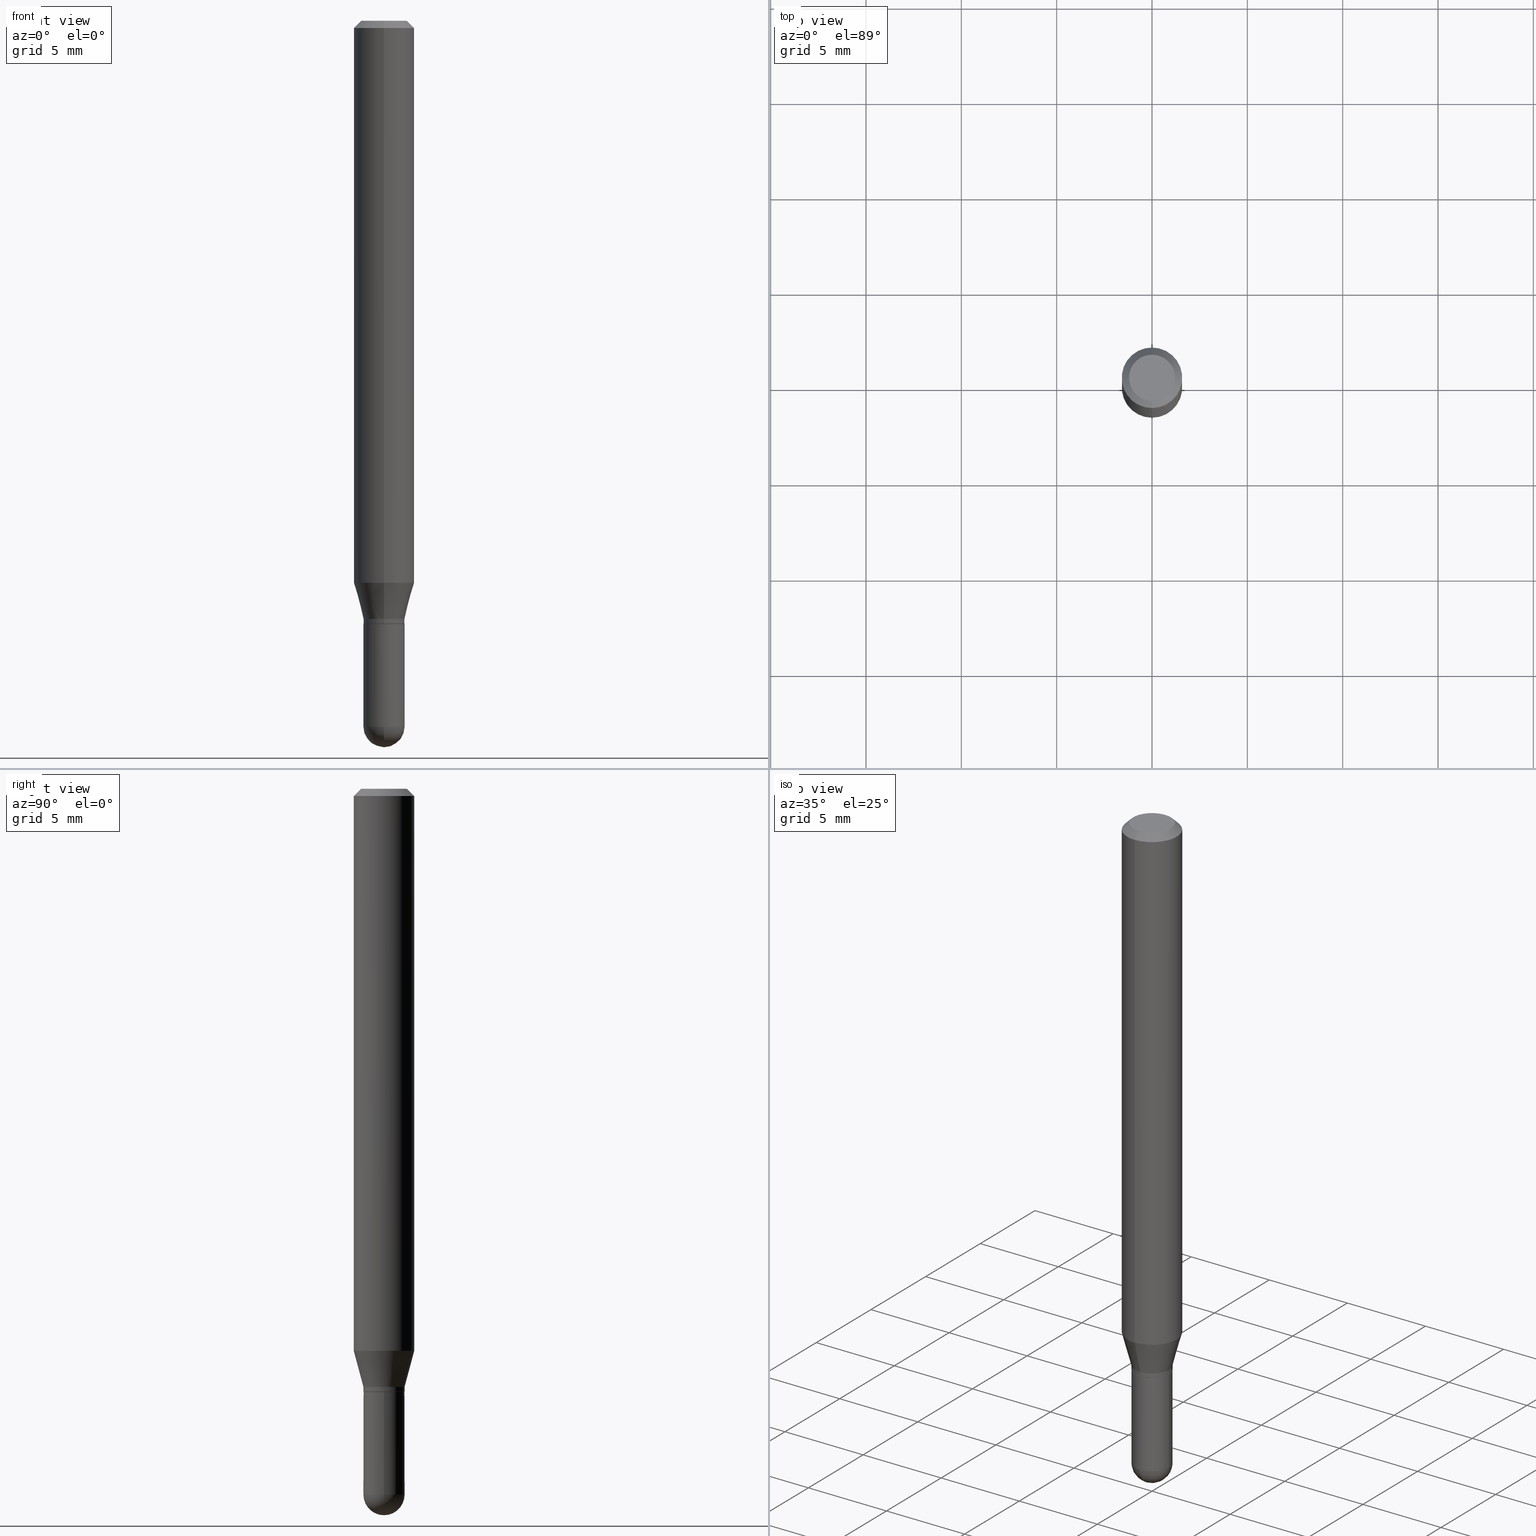
[diagram: canonical four-view strip — front | top / right | iso, engineering-drawing reading convention]
A machine part, canonical four-view strip (front | top / right | iso — engineering-drawing reading convention). The complete STEP part file that produces these views, byte-faithful:
ISO-10303-21;
HEADER;
FILE_DESCRIPTION (( 'STEP AP203' ),
    '1' );
FILE_NAME ('02597.STEP',
    '2024-03-07T20:40:13',
    ( '' ),
    ( '' ),
    'SwSTEP 2.0',
    'SolidWorks 2023',
    '' );
FILE_SCHEMA (( 'CONFIG_CONTROL_DESIGN' ));
ENDSEC;

DATA;
#1 = AXIS2_PLACEMENT_3D ( 'NONE', #200, #480, #125 ) ;
#2 = CARTESIAN_POINT ( 'NONE',  ( 3.044608663700495534E-29, -4.346894266859716647E-15, -1.245000000000000329 ) ) ;
#3 = CIRCLE ( 'NONE', #465, 0.04749999999999999362 ) ;
#4 = DIRECTION ( 'NONE',  ( -2.445523810004875805E-29, 3.491402570242655808E-15, 1.000000000000000000 ) ) ;
#5 = DIRECTION ( 'NONE',  ( 1.000000000000000000, -6.982962677686265922E-15, 4.883557194083112901E-29 ) ) ;
#6 = EDGE_LOOP ( 'NONE', ( #485, #388, #85, #96 ) ) ;
#7 = ORIENTED_EDGE ( 'NONE', *, *, #330, .F. ) ;
#8 = EDGE_LOOP ( 'NONE', ( #188, #356 ) ) ;
#9 = DIRECTION ( 'NONE',  ( -2.445523810004875805E-29, 3.491402570242655808E-15, 1.000000000000000000 ) ) ;
#10 = AXIS2_PLACEMENT_3D ( 'NONE', #204, #92, #242 ) ;
#11 = AXIS2_PLACEMENT_3D ( 'NONE', #321, #503, #117 ) ;
#12 = VERTEX_POINT ( 'NONE', #52 ) ;
#13 = EDGE_LOOP ( 'NONE', ( #193, #347, #443, #326 ) ) ;
#14 = PERSON_AND_ORGANIZATION ( #369, #107 ) ;
#15 = ORIENTED_EDGE ( 'NONE', *, *, #296, .F. ) ;
#16 = PERSON_AND_ORGANIZATION_ROLE ( 'classification_officer' ) ;
#17 = ORIENTED_EDGE ( 'NONE', *, *, #310, .T. ) ;
#18 = CC_DESIGN_DATE_AND_TIME_ASSIGNMENT ( #382, #105, ( #396 ) ) ;
#19 = CIRCLE ( 'NONE', #351, 0.06250000000000000000 ) ;
#20 = CIRCLE ( 'NONE', #93, 0.04250000000000009326 ) ;
#21 = MECHANICAL_CONTEXT ( 'NONE', #149, 'mechanical' ) ;
#22 = ADVANCED_FACE ( 'NONE', ( #167 ), #283, .T. ) ;
#23 = CYLINDRICAL_SURFACE ( 'NONE', #218, 0.04250000000000000999 ) ;
#24 = CARTESIAN_POINT ( 'NONE',  ( 0.000000000000000000, 0.000000000000000000, 0.000000000000000000 ) ) ;
#25 = CARTESIAN_POINT ( 'NONE',  ( -2.967759138016355400E-16, -0.04250000000000423578, -1.235000000000000098 ) ) ;
#26 = CONICAL_SURFACE ( 'NONE', #1, 0.06250000000000000000, 0.7853981633974483900 ) ;
#27 = FACE_OUTER_BOUND ( 'NONE', #442, .T. ) ;
#28 = AXIS2_PLACEMENT_3D ( 'NONE', #161, #156, #311 ) ;
#29 = APPROVAL ( #69, 'UNSPECIFIED' ) ;
#30 = PRODUCT_RELATED_PRODUCT_CATEGORY ( 'detail', '', ( #415 ) ) ;
#31 = DIRECTION ( 'NONE',  ( -2.445523810004875805E-29, 3.491402570242655808E-15, 1.000000000000000000 ) ) ;
#32 = FACE_OUTER_BOUND ( 'NONE', #169, .T. ) ;
#33 = ORIENTED_EDGE ( 'NONE', *, *, #89, .F. ) ;
#34 = DIRECTION ( 'NONE',  ( 1.000000000000000000, -6.982962677686265133E-15, 0.000000000000000000 ) ) ;
#35 = CARTESIAN_POINT ( 'NONE',  ( -4.287811248607203282E-16, -0.06250000000000005551, -0.01500000000000011047 ) ) ;
#36 = VECTOR ( 'NONE', #314, 39.37007874015748143 ) ;
#37 = APPROVAL_PERSON_ORGANIZATION ( #341, #29, #339 ) ;
#38 = DIRECTION ( 'NONE',  ( -2.445523810004875805E-29, 3.491402570242655808E-15, 1.000000000000000000 ) ) ;
#39 = ORIENTED_EDGE ( 'NONE', *, *, #306, .F. ) ;
#40 = CARTESIAN_POINT ( 'NONE',  ( -4.364351673553912750E-16, -0.06250000000000005551, -0.01500000000000011047 ) ) ;
#41 = CARTESIAN_POINT ( 'NONE',  ( 3.002043058586724733E-16, 0.04199999999999565192, -1.245000000000000551 ) ) ;
#42 = FACE_OUTER_BOUND ( 'NONE', #287, .T. ) ;
#43 = ADVANCED_FACE ( 'NONE', ( #246 ), #371, .F. ) ;
#44 = ORIENTED_EDGE ( 'NONE', *, *, #492, .F. ) ;
#45 = CIRCLE ( 'NONE', #336, 0.04199999999999999567 ) ;
#46 = ADVANCED_FACE ( 'NONE', ( #402 ), #26, .T. ) ;
#47 = CIRCLE ( 'NONE', #129, 0.04250000000000009326 ) ;
#48 = ORIENTED_EDGE ( 'NONE', *, *, #380, .F. ) ;
#49 = EDGE_CURVE ( 'NONE', #158, #115, #496, .T. ) ;
#50 = FACE_OUTER_BOUND ( 'NONE', #322, .T. ) ;
#51 = UNCERTAINTY_MEASURE_WITH_UNIT (LENGTH_MEASURE( 1.000000000000000082E-05 ), #140, 'distance_accuracy_value', 'NONE');
#52 = CARTESIAN_POINT ( 'NONE',  ( 0.04249999999999999611, -4.643670180661383298E-15, -1.245000000000000329 ) ) ;
#53 = EDGE_CURVE ( 'NONE', #130, #249, #301, .T. ) ;
#54 = VERTEX_POINT ( 'NONE', #299 ) ;
#55 = VECTOR ( 'NONE', #307, 39.37007874015748854 ) ;
#56 = VECTOR ( 'NONE', #190, 39.37007874015748143 ) ;
#57 = ORIENTED_EDGE ( 'NONE', *, *, #472, .F. ) ;
#58 = DIRECTION ( 'NONE',  ( 1.000000000000000000, -6.982962677686273810E-15, 0.000000000000000000 ) ) ;
#59 = MANIFOLD_SOLID_BREP ( 'Body-Move/Copy2[1]', #173 ) ;
#60 = DIRECTION ( 'NONE',  ( -2.445523810004875805E-29, 3.491402570242655808E-15, 1.000000000000000000 ) ) ;
#61 = EDGE_CURVE ( 'NONE', #132, #158, #491, .T. ) ;
#62 = DIRECTION ( 'NONE',  ( -2.445523810004875805E-29, 3.491402570242655808E-15, 1.000000000000000000 ) ) ;
#63 = CARTESIAN_POINT ( 'NONE',  ( 0.000000000000000000, 0.000000000000000000, 0.000000000000000000 ) ) ;
#64 = AXIS2_PLACEMENT_3D ( 'NONE', #379, #455, #338 ) ;
#65 = CIRCLE ( 'NONE', #247, 0.04250000000000000999 ) ;
#66 = CARTESIAN_POINT ( 'NONE',  ( 3.668285715007394160E-31, -5.237103855364098245E-17, -0.01500000000000032904 ) ) ;
#67 = EDGE_LOOP ( 'NONE', ( #399, #95, #440, #368 ) ) ;
#68 = DIRECTION ( 'NONE',  ( 0.000000000000000000, 0.000000000000000000, 1.000000000000000000 ) ) ;
#69 = APPROVAL_STATUS ( 'not_yet_approved' ) ;
#70 = ADVANCED_FACE ( 'NONE', ( #263 ), #375, .T. ) ;
#71 = CARTESIAN_POINT ( 'NONE',  ( 3.044677143456071174E-29, -4.346796199952107706E-15, -1.245000000000000329 ) ) ;
#72 =( NAMED_UNIT ( * ) SI_UNIT ( $, .STERADIAN. ) SOLID_ANGLE_UNIT ( ) );
#73 = ADVANCED_BREP_SHAPE_REPRESENTATION ( '02597', ( #59, #404, #352 ), #180 ) ;
#74 = CARTESIAN_POINT ( 'NONE',  ( 4.440892098500625669E-16, 0.06250000000000000000, -2.182126606401659880E-16 ) ) ;
#75 = CONICAL_SURFACE ( 'NONE', #436, 0.04249999999999991979, 0.2617993877991497409 ) ;
#76 = DIRECTION ( 'NONE',  ( -2.445523810004875805E-29, 3.491402570242655808E-15, 1.000000000000000000 ) ) ;
#77 = EDGE_CURVE ( 'NONE', #115, #197, #340, .T. ) ;
#78 = LINE ( 'NONE', #35, #56 ) ;
#79 = ORIENTED_EDGE ( 'NONE', *, *, #185, .F. ) ;
#80 = DIRECTION ( 'NONE',  ( -2.445468806185136597E-29, 3.491481338843145583E-15, 1.000000000000000000 ) ) ;
#81 = DIRECTION ( 'NONE',  ( 7.105427357601001070E-15, 1.000000000000000000, 0.000000000000000000 ) ) ;
#82 = CARTESIAN_POINT ( 'NONE',  ( -4.364351673553916201E-16, -0.06250000000000000000, 2.182126606401659880E-16 ) ) ;
#83 = VECTOR ( 'NONE', #427, 39.37007874015748143 ) ;
#84 = CONICAL_SURFACE ( 'NONE', #241, 0.04249999999999991979, 0.2617993877991497409 ) ;
#85 = ORIENTED_EDGE ( 'NONE', *, *, #77, .T. ) ;
#86 = CARTESIAN_POINT ( 'NONE',  ( 0.04250000000000000999, -2.967759138016664042E-16, 2.072375129713273202E-30 ) ) ;
#87 = EDGE_CURVE ( 'NONE', #366, #235, #451, .T. ) ;
#88 = DIRECTION ( 'NONE',  ( -1.000000000000000000, 6.982962677686265922E-15, -4.876176775795935793E-29 ) ) ;
#89 = EDGE_CURVE ( 'NONE', #450, #132, #45, .T. ) ;
#90 = ORIENTED_EDGE ( 'NONE', *, *, #87, .T. ) ;
#91 = DIRECTION ( 'NONE',  ( -2.445523810004875805E-29, 3.491402570242655808E-15, 1.000000000000000000 ) ) ;
#92 = DIRECTION ( 'NONE',  ( 2.445523810004875525E-29, -3.491402570242655808E-15, -1.000000000000000000 ) ) ;
#93 = AXIS2_PLACEMENT_3D ( 'NONE', #476, #331, #486 ) ;
#94 = ORIENTED_EDGE ( 'NONE', *, *, #185, .T. ) ;
#95 = ORIENTED_EDGE ( 'NONE', *, *, #112, .T. ) ;
#96 = ORIENTED_EDGE ( 'NONE', *, *, #262, .F. ) ;
#97 = ORIENTED_EDGE ( 'NONE', *, *, #479, .T. ) ;
#98 = FACE_OUTER_BOUND ( 'NONE', #453, .T. ) ;
#99 = AXIS2_PLACEMENT_3D ( 'NONE', #342, #383, #497 ) ;
#100 = APPROVAL_PERSON_ORGANIZATION ( #14, #412, #178 ) ;
#101 = VERTEX_POINT ( 'NONE', #417 ) ;
#102 = ORIENTED_EDGE ( 'NONE', *, *, #89, .T. ) ;
#103 = PERSON_AND_ORGANIZATION ( #369, #107 ) ;
#104 = DIRECTION ( 'NONE',  ( 1.000000000000000000, -6.982962677686273810E-15, 0.000000000000000000 ) ) ;
#105 = DATE_TIME_ROLE ( 'creation_date' ) ;
#106 = LINE ( 'NONE', #74, #406 ) ;
#107 = ORGANIZATION ( 'UNSPECIFIED', 'UNSPECIFIED', '' ) ;
#108 = AXIS2_PLACEMENT_3D ( 'NONE', #279, #91, #198 ) ;
#109 = APPROVAL_DATE_TIME ( #145, #412 ) ;
#110 = CARTESIAN_POINT ( 'NONE',  ( -4.364351673553629746E-16, -0.06250000000000402456, -1.160358983848622350 ) ) ;
#111 = CIRCLE ( 'NONE', #498, 0.04249999999999991979 ) ;
#112 = EDGE_CURVE ( 'NONE', #205, #366, #106, .T. ) ;
#113 = ORIENTED_EDGE ( 'NONE', *, *, #53, .F. ) ;
#114 = DIRECTION ( 'NONE',  ( -2.445523810004875525E-29, 3.491402570242655808E-15, 1.000000000000000000 ) ) ;
#115 = VERTEX_POINT ( 'NONE', #25 ) ;
#116 = DATE_AND_TIME ( #308, #248 ) ;
#117 = DIRECTION ( 'NONE',  ( 1.000000000000000000, -6.982962677686265133E-15, 0.000000000000000000 ) ) ;
#118 = CIRCLE ( 'NONE', #99, 0.04199999999999999567 ) ;
#119 = CC_DESIGN_APPROVAL ( #29, ( #396 ) ) ;
#120 = DIRECTION ( 'NONE',  ( -6.982962677686266711E-15, -1.000000000000000000, 6.427877632151220009E-15 ) ) ;
#121 = ORIENTED_EDGE ( 'NONE', *, *, #49, .T. ) ;
#122 = FACE_OUTER_BOUND ( 'NONE', #13, .T. ) ;
#123 = DIRECTION ( 'NONE',  ( -6.982962677686266711E-15, -1.000000000000000000, 3.491402570242656203E-15 ) ) ;
#124 = ORIENTED_EDGE ( 'NONE', *, *, #126, .T. ) ;
#125 = DIRECTION ( 'NONE',  ( 6.982962677686265922E-15, 1.000000000000000000, -3.483106191921935554E-15 ) ) ;
#126 = EDGE_CURVE ( 'NONE', #130, #366, #423, .T. ) ;
#127 = AXIS2_PLACEMENT_3D ( 'NONE', #182, #137, #104 ) ;
#128 = DIRECTION ( 'NONE',  ( -6.982962677686266711E-15, -1.000000000000000000, 3.491402570242655808E-15 ) ) ;
#129 = AXIS2_PLACEMENT_3D ( 'NONE', #192, #316, #81 ) ;
#130 = VERTEX_POINT ( 'NONE', #141 ) ;
#131 = ORIENTED_EDGE ( 'NONE', *, *, #439, .F. ) ;
#132 = VERTEX_POINT ( 'NONE', #254 ) ;
#133 =( NAMED_UNIT ( * ) PLANE_ANGLE_UNIT ( ) SI_UNIT ( $, .RADIAN. ) );
#134 = AXIS2_PLACEMENT_3D ( 'NONE', #187, #38, #505 ) ;
#135 = CC_DESIGN_APPROVAL ( #403, ( #181 ) ) ;
#136 = EDGE_CURVE ( 'NONE', #235, #366, #19, .T. ) ;
#137 = DIRECTION ( 'NONE',  ( -2.445468806185136597E-29, 3.491481338843145583E-15, 1.000000000000000000 ) ) ;
#138 = DATE_TIME_ROLE ( 'classification_date' ) ;
#139 = ADVANCED_FACE ( 'NONE', ( #27 ), #419, .T. ) ;
#140 =( CONVERSION_BASED_UNIT ( 'INCH', #421 ) LENGTH_UNIT ( ) NAMED_UNIT ( #400 ) );
#141 = CARTESIAN_POINT ( 'NONE',  ( 3.840629472727447874E-16, 0.04749999999999999362, -4.939923113072091241E-16 ) ) ;
#142 = EDGE_CURVE ( 'NONE', #132, #450, #118, .T. ) ;
#143 = AXIS2_PLACEMENT_3D ( 'NONE', #272, #512, #120 ) ;
#144 = PRODUCT_DEFINITION_FORMATION_WITH_SPECIFIED_SOURCE ( 'ANY', '', #415, .NOT_KNOWN. ) ;
#145 = DATE_AND_TIME ( #499, #508 ) ;
#146 = CC_DESIGN_PERSON_AND_ORGANIZATION_ASSIGNMENT ( #103, #250, ( #144 ) ) ;
#147 = LINE ( 'NONE', #82, #320 ) ;
#148 = PLANE ( 'NONE',  #344 ) ;
#149 = APPLICATION_CONTEXT ( 'configuration controlled 3d designs of mechanical parts and assemblies' ) ;
#150 = DIRECTION ( 'NONE',  ( -6.982962677686265922E-15, -1.000000000000000000, 4.370956789862821150E-15 ) ) ;
#151 = FACE_OUTER_BOUND ( 'NONE', #291, .T. ) ;
#152 = SPHERICAL_SURFACE ( 'NONE', #191, 0.04250000000000009326 ) ;
#153 = CARTESIAN_POINT ( 'NONE',  ( 3.019806626980419597E-16, 0.04249999999999991979, -1.483846092353125938E-16 ) ) ;
#154 = EDGE_CURVE ( 'NONE', #355, #194, #164, .T. ) ;
#155 = CARTESIAN_POINT ( 'NONE',  ( 3.044677143456071174E-29, -4.346796199952107706E-15, -1.245000000000000329 ) ) ;
#156 = DIRECTION ( 'NONE',  ( -2.445523810004875805E-29, 3.491402570242655808E-15, 1.000000000000000000 ) ) ;
#157 = CIRCLE ( 'NONE', #420, 0.04249999999999991979 ) ;
#158 = VERTEX_POINT ( 'NONE', #251 ) ;
#159 = LINE ( 'NONE', #229, #475 ) ;
#160 = ORIENTED_EDGE ( 'NONE', *, *, #349, .F. ) ;
#161 = CARTESIAN_POINT ( 'NONE',  ( 2.837685523154869369E-29, -4.051280338613237522E-15, -1.160358983848622572 ) ) ;
#162 = ORIENTED_EDGE ( 'NONE', *, *, #225, .T. ) ;
#163 = VERTEX_POINT ( 'NONE', #473 ) ;
#164 = CIRCLE ( 'NONE', #127, 0.04250000000000000999 ) ;
#165 = CIRCLE ( 'NONE', #359, 0.04250000000000000999 ) ;
#166 = DIRECTION ( 'NONE',  ( -2.445523810004875805E-29, 3.491402570242655808E-15, 1.000000000000000000 ) ) ;
#167 = FACE_OUTER_BOUND ( 'NONE', #361, .T. ) ;
#168 = DIRECTION ( 'NONE',  ( -6.982962677686266711E-15, -1.000000000000000000, 6.427877632151220009E-15 ) ) ;
#169 = EDGE_LOOP ( 'NONE', ( #449, #33 ) ) ;
#170 = PERSON_AND_ORGANIZATION_ROLE ( 'creator' ) ;
#171 = ORIENTED_EDGE ( 'NONE', *, *, #349, .T. ) ;
#172 = CALENDAR_DATE ( 2024, 7, 3 ) ;
#173 = CLOSED_SHELL ( 'NONE', ( #70, #370, #305, #471, #363 ) ) ;
#174 = CIRCLE ( 'NONE', #11, 0.04249999999999999611 ) ;
#175 = CC_DESIGN_SECURITY_CLASSIFICATION ( #181, ( #144 ) ) ;
#176 = COORDINATED_UNIVERSAL_TIME_OFFSET ( 5, 0, .BEHIND. ) ;
#177 = PERSON_AND_ORGANIZATION_ROLE ( 'design_owner' ) ;
#178 = APPROVAL_ROLE ( '' ) ;
#179 = CIRCLE ( 'NONE', #256, 0.06250000000000000000 ) ;
#180 =( GEOMETRIC_REPRESENTATION_CONTEXT ( 3 ) GLOBAL_UNCERTAINTY_ASSIGNED_CONTEXT ( ( #51 ) ) GLOBAL_UNIT_ASSIGNED_CONTEXT ( ( #140, #133, #72 ) ) REPRESENTATION_CONTEXT ( 'NONE', 'WORKASPACE' ) );
#181 = SECURITY_CLASSIFICATION ( '', '', #413 ) ;
#182 = CARTESIAN_POINT ( 'NONE',  ( 3.564270785014837509E-29, -5.088834051363884851E-15, -1.457500000000000240 ) ) ;
#183 = DIRECTION ( 'NONE',  ( -2.445523810004875805E-29, 3.491402570242655808E-15, 1.000000000000000000 ) ) ;
#184 = ORIENTED_EDGE ( 'NONE', *, *, #327, .T. ) ;
#185 = EDGE_CURVE ( 'NONE', #394, #12, #390, .T. ) ;
#186 = CARTESIAN_POINT ( 'NONE',  ( 4.440892098500911138E-16, 0.06249999999999995143, -0.01500000000000054588 ) ) ;
#187 = CARTESIAN_POINT ( 'NONE',  ( 0.000000000000000000, 0.000000000000000000, 0.000000000000000000 ) ) ;
#188 = ORIENTED_EDGE ( 'NONE', *, *, #53, .T. ) ;
#189 = DIRECTION ( 'NONE',  ( -6.982962677686265922E-15, -1.000000000000000000, 6.427877632151193188E-15 ) ) ;
#190 = DIRECTION ( 'NONE',  ( -4.851104656540964275E-15, -0.7071067811865500152, -0.7071067811865450192 ) ) ;
#191 = AXIS2_PLACEMENT_3D ( 'NONE', #271, #236, #189 ) ;
#192 = CARTESIAN_POINT ( 'NONE',  ( 3.560636328285825248E-29, -5.094038800260261442E-15, -1.457500000000000240 ) ) ;
#193 = ORIENTED_EDGE ( 'NONE', *, *, #112, .F. ) ;
#194 = VERTEX_POINT ( 'NONE', #278 ) ;
#195 = CARTESIAN_POINT ( 'NONE',  ( 3.019806626980721830E-16, 0.04249999999999561073, -1.235000000000000542 ) ) ;
#196 = CYLINDRICAL_SURFACE ( 'NONE', #134, 0.04249999999999991979 ) ;
#197 = VERTEX_POINT ( 'NONE', #110 ) ;
#198 = DIRECTION ( 'NONE',  ( -6.982962677686265922E-15, -1.000000000000000000, 3.491402570242655808E-15 ) ) ;
#199 = EDGE_CURVE ( 'NONE', #197, #205, #179, .T. ) ;
#200 = CARTESIAN_POINT ( 'NONE',  ( 3.668285715007394160E-31, -5.237103855364098245E-17, -0.01500000000000032904 ) ) ;
#201 = ORIENTED_EDGE ( 'NONE', *, *, #472, .T. ) ;
#202 = CONICAL_SURFACE ( 'NONE', #293, 0.04199999999999999567, 0.7853981633974739252 ) ;
#203 = LOCAL_TIME ( 15, 40, 13.00000000000000000, #372 ) ;
#204 = CARTESIAN_POINT ( 'NONE',  ( 3.316907271900976096E-16, 0.04749999999999999362, -3.299169666968676133E-16 ) ) ;
#205 = VERTEX_POINT ( 'NONE', #346 ) ;
#206 = PERSON_AND_ORGANIZATION ( #369, #107 ) ;
#207 = ORIENTED_EDGE ( 'NONE', *, *, #288, .F. ) ;
#208 = ORIENTED_EDGE ( 'NONE', *, *, #239, .F. ) ;
#209 = CARTESIAN_POINT ( 'NONE',  ( -2.967759138016657633E-16, -0.04249999999999991979, 1.483846092353125938E-16 ) ) ;
#210 = CALENDAR_DATE ( 2024, 7, 3 ) ;
#211 = DIRECTION ( 'NONE',  ( -2.445523810004875525E-29, 3.491402570242655808E-15, 1.000000000000000000 ) ) ;
#212 = DIRECTION ( 'NONE',  ( -2.445523810004875805E-29, 3.491402570242655808E-15, 1.000000000000000000 ) ) ;
#213 = ORIENTED_EDGE ( 'NONE', *, *, #199, .F. ) ;
#214 = CALENDAR_DATE ( 2024, 7, 3 ) ;
#215 = CARTESIAN_POINT ( 'NONE',  ( 4.364351673553919652E-16, 0.06249999999999995143, -0.01500000000000054588 ) ) ;
#216 = DIRECTION ( 'NONE',  ( -2.445468806185136597E-29, 3.491481338843145583E-15, 1.000000000000000000 ) ) ;
#217 = EDGE_LOOP ( 'NONE', ( #131, #102, #409, #57 ) ) ;
#218 = AXIS2_PLACEMENT_3D ( 'NONE', #495, #216, #309 ) ;
#219 = DIRECTION ( 'NONE',  ( -2.445523810004875525E-29, 3.491402570242655808E-15, 1.000000000000000000 ) ) ;
#220 = EDGE_LOOP ( 'NONE', ( #405, #184, #397, #94, #364 ) ) ;
#221 = CC_DESIGN_PERSON_AND_ORGANIZATION_ASSIGNMENT ( #260, #170, ( #144 ) ) ;
#222 = FACE_OUTER_BOUND ( 'NONE', #6, .T. ) ;
#223 = DIRECTION ( 'NONE',  ( 1.000000000000000000, -6.982962677686273810E-15, 0.000000000000000000 ) ) ;
#224 = DIRECTION ( 'NONE',  ( -6.982962677686266711E-15, -1.000000000000000000, 6.427877632151220009E-15 ) ) ;
#225 = EDGE_CURVE ( 'NONE', #285, #12, #174, .T. ) ;
#226 = ORIENTED_EDGE ( 'NONE', *, *, #154, .F. ) ;
#227 = COORDINATED_UNIVERSAL_TIME_OFFSET ( 5, 0, .BEHIND. ) ;
#228 = DIRECTION ( 'NONE',  ( 1.839019923739596765E-15, 0.2588190451025244587, 0.9659258262890673130 ) ) ;
#229 = CARTESIAN_POINT ( 'NONE',  ( -0.04250000000000000999, 3.019806626980426500E-16, -2.090547413358335560E-30 ) ) ;
#230 = EDGE_LOOP ( 'NONE', ( #360, #289, #213, #447 ) ) ;
#231 = CARTESIAN_POINT ( 'NONE',  ( 3.019806626980785432E-16, 0.04249999999999495154, -1.457500000000000462 ) ) ;
#232 = EDGE_CURVE ( 'NONE', #197, #235, #147, .T. ) ;
#233 = AXIS2_PLACEMENT_3D ( 'NONE', #470, #62, #414 ) ;
#234 = LINE ( 'NONE', #153, #507 ) ;
#235 = VERTEX_POINT ( 'NONE', #40 ) ;
#236 = DIRECTION ( 'NONE',  ( 1.000000000000000000, -6.982962677686265922E-15, 4.883557194083112901E-29 ) ) ;
#237 = CARTESIAN_POINT ( 'NONE',  ( 2.837685523154869369E-29, -4.051280338613237522E-15, -1.160358983848622572 ) ) ;
#238 = DIRECTION ( 'NONE',  ( -6.982962677686266711E-15, -1.000000000000000000, 6.427877632151220009E-15 ) ) ;
#239 = EDGE_CURVE ( 'NONE', #54, #478, #234, .T. ) ;
#240 = VECTOR ( 'NONE', #493, 39.37007874015748143 ) ;
#241 = AXIS2_PLACEMENT_3D ( 'NONE', #395, #76, #224 ) ;
#242 = DIRECTION ( 'NONE',  ( 6.982962677686265922E-15, 1.000000000000000000, -3.491402570242655808E-15 ) ) ;
#243 = EDGE_LOOP ( 'NONE', ( #484, #325, #44, #48 ) ) ;
#244 = ADVANCED_FACE ( 'NONE', ( #266 ), #84, .T. ) ;
#245 = ORIENTED_EDGE ( 'NONE', *, *, #261, .F. ) ;
#246 = FACE_OUTER_BOUND ( 'NONE', #8, .T. ) ;
#247 = AXIS2_PLACEMENT_3D ( 'NONE', #290, #323, #58 ) ;
#248 = LOCAL_TIME ( 15, 40, 13.00000000000000000, #227 ) ;
#249 = VERTEX_POINT ( 'NONE', #506 ) ;
#250 = PERSON_AND_ORGANIZATION_ROLE ( 'design_supplier' ) ;
#251 = CARTESIAN_POINT ( 'NONE',  ( -2.967759138016344061E-16, -0.04250000000000413863, -1.244500000000000162 ) ) ;
#252 = CC_DESIGN_DATE_AND_TIME_ASSIGNMENT ( #337, #138, ( #181 ) ) ;
#253 = APPROVAL_STATUS ( 'not_yet_approved' ) ;
#254 = CARTESIAN_POINT ( 'NONE',  ( -2.932844324627926808E-16, -0.04200000000000434636, -1.244999999999999885 ) ) ;
#255 = AXIS2_PLACEMENT_3D ( 'NONE', #381, #300, #458 ) ;
#256 = AXIS2_PLACEMENT_3D ( 'NONE', #237, #183, #150 ) ;
#257 = DIRECTION ( 'NONE',  ( -6.982962677686265922E-15, -1.000000000000000000, 3.483106191921935554E-15 ) ) ;
#258 = DIRECTION ( 'NONE',  ( 1.000000000000000000, 0.000000000000000000, 0.000000000000000000 ) ) ;
#259 = DIRECTION ( 'NONE',  ( -2.445468806185136597E-29, 3.491481338843145583E-15, 1.000000000000000000 ) ) ;
#260 = PERSON_AND_ORGANIZATION ( #369, #107 ) ;
#261 = EDGE_CURVE ( 'NONE', #158, #54, #446, .T. ) ;
#262 = EDGE_CURVE ( 'NONE', #205, #197, #365, .T. ) ;
#263 = FACE_OUTER_BOUND ( 'NONE', #384, .T. ) ;
#264 = VECTOR ( 'NONE', #211, 39.37007874015748143 ) ;
#265 = AXIS2_PLACEMENT_3D ( 'NONE', #448, #5, #286 ) ;
#266 = FACE_OUTER_BOUND ( 'NONE', #230, .T. ) ;
#267 = ORIENTED_EDGE ( 'NONE', *, *, #492, .T. ) ;
#268 = DIRECTION ( 'NONE',  ( 5.024295867788190974E-15, 0.7071067811865681119, 0.7071067811865270336 ) ) ;
#269 = DIRECTION ( 'NONE',  ( -2.445523810004875805E-29, 3.491402570242655808E-15, 1.000000000000000000 ) ) ;
#270 = ADVANCED_FACE ( 'NONE', ( #42 ), #196, .T. ) ;
#271 = CARTESIAN_POINT ( 'NONE',  ( 3.560636328285825248E-29, -5.094038800260261442E-15, -1.457500000000000240 ) ) ;
#272 = CARTESIAN_POINT ( 'NONE',  ( 3.020221905356022886E-29, -4.311882174249681034E-15, -1.235000000000000320 ) ) ;
#273 = ORIENTED_EDGE ( 'NONE', *, *, #239, .T. ) ;
#274 = DIRECTION ( 'NONE',  ( -2.445523810004875805E-29, 3.491402570242655808E-15, 1.000000000000000000 ) ) ;
#275 = DIRECTION ( 'NONE',  ( -2.445523810004875525E-29, 3.491402570242655808E-15, 1.000000000000000000 ) ) ;
#276 = CARTESIAN_POINT ( 'NONE',  ( 0.04250000000000000999, -5.014640072913468189E-15, -1.457500000000000240 ) ) ;
#277 = CARTESIAN_POINT ( 'NONE',  ( 3.020221905356022886E-29, -4.311882174249681034E-15, -1.235000000000000320 ) ) ;
#278 = CARTESIAN_POINT ( 'NONE',  ( -0.04250000000000000999, -4.415883496413759874E-15, -1.457500000000000240 ) ) ;
#279 = CARTESIAN_POINT ( 'NONE',  ( 0.000000000000000000, 0.000000000000000000, 0.000000000000000000 ) ) ;
#280 = DIRECTION ( 'NONE',  ( -2.445468806185136597E-29, 3.491481338843145583E-15, 1.000000000000000000 ) ) ;
#281 = CARTESIAN_POINT ( 'NONE',  ( 3.044677143456071174E-29, -4.346796199952107706E-15, -1.245000000000000329 ) ) ;
#282 = SPHERICAL_SURFACE ( 'NONE', #265, 0.04250000000000009326 ) ;
#283 = CONICAL_SURFACE ( 'NONE', #482, 0.04199999999999999567, 0.7853981633974739252 ) ;
#284 = AXIS2_PLACEMENT_3D ( 'NONE', #434, #324, #88 ) ;
#285 = VERTEX_POINT ( 'NONE', #357 ) ;
#286 = DIRECTION ( 'NONE',  ( -6.982962677686265922E-15, -1.000000000000000000, 6.427877632151193188E-15 ) ) ;
#287 = EDGE_LOOP ( 'NONE', ( #208, #201, #121, #207 ) ) ;
#288 = EDGE_CURVE ( 'NONE', #478, #115, #385, .T. ) ;
#289 = ORIENTED_EDGE ( 'NONE', *, *, #452, .T. ) ;
#290 = CARTESIAN_POINT ( 'NONE',  ( 3.564270785014837509E-29, -5.088834051363884851E-15, -1.457500000000000240 ) ) ;
#291 = EDGE_LOOP ( 'NONE', ( #488, #162 ) ) ;
#292 = AXIS2_PLACEMENT_3D ( 'NONE', #500, #460, #257 ) ;
#293 = AXIS2_PLACEMENT_3D ( 'NONE', #155, #430, #509 ) ;
#294 = APPLICATION_PROTOCOL_DEFINITION ( 'international standard', 'config_control_design', 1994, #149 ) ;
#295 = APPROVAL_PERSON_ORGANIZATION ( #456, #403, #501 ) ;
#296 = EDGE_CURVE ( 'NONE', #115, #478, #157, .T. ) ;
#297 = DATE_AND_TIME ( #210, #437 ) ;
#298 = APPLICATION_CONTEXT ( 'configuration controlled 3d designs of mechanical parts and assemblies' ) ;
#299 = CARTESIAN_POINT ( 'NONE',  ( 3.019806626980733170E-16, 0.04249999999999570788, -1.244500000000000606 ) ) ;
#300 = DIRECTION ( 'NONE',  ( 2.445523810004875805E-29, -3.491402570242655808E-15, -1.000000000000000000 ) ) ;
#301 = CIRCLE ( 'NONE', #64, 0.04749999999999999362 ) ;
#302 = CIRCLE ( 'NONE', #376, 0.04250000000000000999 ) ;
#303 = ORIENTED_EDGE ( 'NONE', *, *, #142, .T. ) ;
#304 = DIRECTION ( 'NONE',  ( -6.982962677686265922E-15, -1.000000000000000000, 3.483106191921935554E-15 ) ) ;
#305 = ADVANCED_FACE ( 'NONE', ( #151 ), #387, .F. ) ;
#306 = EDGE_CURVE ( 'NONE', #249, #130, #3, .T. ) ;
#307 = DIRECTION ( 'NONE',  ( -1.807323732225326589E-15, -0.2588190451025176864, 0.9659258262890690894 ) ) ;
#308 = CALENDAR_DATE ( 2024, 7, 3 ) ;
#309 = DIRECTION ( 'NONE',  ( 1.000000000000000000, -6.982962677686266711E-15, 4.876176775795935793E-29 ) ) ;
#310 = EDGE_CURVE ( 'NONE', #194, #285, #159, .T. ) ;
#311 = DIRECTION ( 'NONE',  ( -6.982962677686265922E-15, -1.000000000000000000, 4.370956789862821150E-15 ) ) ;
#312 = CARTESIAN_POINT ( 'NONE',  ( 3.043454381551068927E-29, -4.345050498666986570E-15, -1.244500000000000384 ) ) ;
#313 = DIRECTION ( 'NONE',  ( -2.445468806185136877E-29, 3.491481338843145188E-15, 1.000000000000000000 ) ) ;
#314 = DIRECTION ( 'NONE',  ( -2.445468806185136877E-29, 3.491481338843145188E-15, 1.000000000000000000 ) ) ;
#315 = ORIENTED_EDGE ( 'NONE', *, *, #49, .F. ) ;
#316 = DIRECTION ( 'NONE',  ( 1.000000000000000000, -7.105427357601001070E-15, 4.926315508542082329E-29 ) ) ;
#317 = ORIENTED_EDGE ( 'NONE', *, *, #439, .T. ) ;
#318 = CARTESIAN_POINT ( 'NONE',  ( 3.564270785014837509E-29, -5.088834051363884851E-15, -1.457500000000000240 ) ) ;
#319 = AXIS2_PLACEMENT_3D ( 'NONE', #24, #259, #416 ) ;
#320 = VECTOR ( 'NONE', #468, 39.37007874015748143 ) ;
#321 = CARTESIAN_POINT ( 'NONE',  ( 3.044608663700495534E-29, -4.346894266859716647E-15, -1.245000000000000329 ) ) ;
#322 = EDGE_LOOP ( 'NONE', ( #429, #273, #15, #315 ) ) ;
#323 = DIRECTION ( 'NONE',  ( -2.445468806185136597E-29, 3.491481338843145583E-15, 1.000000000000000000 ) ) ;
#324 = DIRECTION ( 'NONE',  ( 2.438088387897960049E-29, -3.491481338843145188E-15, -1.000000000000000000 ) ) ;
#325 = ORIENTED_EDGE ( 'NONE', *, *, #330, .T. ) ;
#326 = ORIENTED_EDGE ( 'NONE', *, *, #87, .F. ) ;
#327 = EDGE_CURVE ( 'NONE', #194, #163, #302, .T. ) ;
#328 = ORIENTED_EDGE ( 'NONE', *, *, #61, .F. ) ;
#329 = ORIENTED_EDGE ( 'NONE', *, *, #126, .F. ) ;
#330 = EDGE_CURVE ( 'NONE', #101, #355, #47, .T. ) ;
#331 = DIRECTION ( 'NONE',  ( -1.000000000000000000, 6.982962677686265922E-15, -4.883557194083112340E-29 ) ) ;
#332 = ORIENTED_EDGE ( 'NONE', *, *, #457, .F. ) ;
#333 = CARTESIAN_POINT ( 'NONE',  ( 3.730349362740815744E-16, 0.04249999999999561073, -1.235000000000000542 ) ) ;
#334 = PERSON_AND_ORGANIZATION ( #369, #107 ) ;
#335 = ADVANCED_FACE ( 'NONE', ( #32 ), #148, .F. ) ;
#336 = AXIS2_PLACEMENT_3D ( 'NONE', #71, #212, #462 ) ;
#337 = DATE_AND_TIME ( #172, #203 ) ;
#338 = DIRECTION ( 'NONE',  ( -6.982962677686266711E-15, -1.000000000000000000, 3.491402570242656203E-15 ) ) ;
#339 = APPROVAL_ROLE ( '' ) ;
#340 = LINE ( 'NONE', #425, #55 ) ;
#341 = PERSON_AND_ORGANIZATION ( #369, #107 ) ;
#342 = CARTESIAN_POINT ( 'NONE',  ( 3.044677143456071174E-29, -4.346796199952107706E-15, -1.245000000000000329 ) ) ;
#343 = COORDINATED_UNIVERSAL_TIME_OFFSET ( 5, 0, .BEHIND. ) ;
#344 = AXIS2_PLACEMENT_3D ( 'NONE', #466, #114, #432 ) ;
#345 = CARTESIAN_POINT ( 'NONE',  ( -2.932844324627926808E-16, -0.04200000000000434636, -1.244999999999999885 ) ) ;
#346 = CARTESIAN_POINT ( 'NONE',  ( 4.440892098500912124E-16, 0.06249999999999598932, -1.160358983848622794 ) ) ;
#347 = ORIENTED_EDGE ( 'NONE', *, *, #262, .T. ) ;
#348 = CARTESIAN_POINT ( 'NONE',  ( 8.025003237586904875E-45, -1.145706159771991361E-30, -3.281506892206829722E-16 ) ) ;
#349 = EDGE_CURVE ( 'NONE', #249, #235, #78, .T. ) ;
#350 = CARTESIAN_POINT ( 'NONE',  ( 3.020221905356022886E-29, -4.311882174249681034E-15, -1.235000000000000320 ) ) ;
#351 = AXIS2_PLACEMENT_3D ( 'NONE', #66, #31, #304 ) ;
#352 = AXIS2_PLACEMENT_3D ( 'NONE', #63, #68, #258 ) ;
#353 = FACE_OUTER_BOUND ( 'NONE', #67, .T. ) ;
#354 = LOCAL_TIME ( 15, 40, 13.00000000000000000, #494 ) ;
#355 = VERTEX_POINT ( 'NONE', #231 ) ;
#356 = ORIENTED_EDGE ( 'NONE', *, *, #306, .T. ) ;
#357 = CARTESIAN_POINT ( 'NONE',  ( -0.04249999999999999611, -4.415883496413758296E-15, -1.245000000000000329 ) ) ;
#358 = ADVANCED_FACE ( 'NONE', ( #353 ), #393, .T. ) ;
#359 = AXIS2_PLACEMENT_3D ( 'NONE', #318, #80, #474 ) ;
#360 = ORIENTED_EDGE ( 'NONE', *, *, #296, .T. ) ;
#361 = EDGE_LOOP ( 'NONE', ( #303, #317, #245, #328 ) ) ;
#362 = CYLINDRICAL_SURFACE ( 'NONE', #108, 0.06250000000000000000 ) ;
#363 = ADVANCED_FACE ( 'NONE', ( #378 ), #23, .T. ) ;
#364 = ORIENTED_EDGE ( 'NONE', *, *, #225, .F. ) ;
#365 = CIRCLE ( 'NONE', #28, 0.06250000000000000000 ) ;
#366 = VERTEX_POINT ( 'NONE', #186 ) ;
#367 = CARTESIAN_POINT ( 'NONE',  ( 3.043454381551068927E-29, -4.345050498666986570E-15, -1.244500000000000384 ) ) ;
#368 = ORIENTED_EDGE ( 'NONE', *, *, #232, .F. ) ;
#369 = PERSON ( 'UNSPECIFIED', 'UNSPECIFIED', 'UNSPECIFIED', ('UNSPECIFIED'), ('UNSPECIFIED'), ('UNSPECIFIED') ) ;
#370 = ADVANCED_FACE ( 'NONE', ( #391 ), #152, .T. ) ;
#371 = PLANE ( 'NONE',  #10 ) ;
#372 = COORDINATED_UNIVERSAL_TIME_OFFSET ( 5, 0, .BEHIND. ) ;
#373 = ADVANCED_FACE ( 'NONE', ( #511 ), #202, .T. ) ;
#374 = DESIGN_CONTEXT ( 'detailed design', #298, 'design' ) ;
#375 = CYLINDRICAL_SURFACE ( 'NONE', #319, 0.04250000000000000999 ) ;
#376 = AXIS2_PLACEMENT_3D ( 'NONE', #438, #280, #223 ) ;
#377 = PERSON_AND_ORGANIZATION ( #369, #107 ) ;
#378 = FACE_OUTER_BOUND ( 'NONE', #220, .T. ) ;
#379 = CARTESIAN_POINT ( 'NONE',  ( 8.025003237586904875E-45, -1.145706159771991361E-30, -3.281506892206829722E-16 ) ) ;
#380 = EDGE_CURVE ( 'NONE', #163, #394, #165, .T. ) ;
#381 = CARTESIAN_POINT ( 'NONE',  ( 3.668285715007394160E-31, -5.237103855364098245E-17, -0.01500000000000032904 ) ) ;
#382 = DATE_AND_TIME ( #214, #354 ) ;
#383 = DIRECTION ( 'NONE',  ( -2.445523810004875805E-29, 3.491402570242655808E-15, 1.000000000000000000 ) ) ;
#384 = EDGE_LOOP ( 'NONE', ( #418, #17, #332, #79, #267 ) ) ;
#385 = CIRCLE ( 'NONE', #143, 0.04249999999999991979 ) ;
#386 = LINE ( 'NONE', #398, #459 ) ;
#387 = PLANE ( 'NONE',  #284 ) ;
#388 = ORIENTED_EDGE ( 'NONE', *, *, #288, .T. ) ;
#389 = DIRECTION ( 'NONE',  ( -2.445468806185136597E-29, 3.491481338843145583E-15, 1.000000000000000000 ) ) ;
#390 = LINE ( 'NONE', #86, #36 ) ;
#391 = FACE_OUTER_BOUND ( 'NONE', #243, .T. ) ;
#392 = AXIS2_PLACEMENT_3D ( 'NONE', #312, #269, #464 ) ;
#393 = CYLINDRICAL_SURFACE ( 'NONE', #233, 0.06250000000000000000 ) ;
#394 = VERTEX_POINT ( 'NONE', #276 ) ;
#395 = CARTESIAN_POINT ( 'NONE',  ( 3.020221905356022886E-29, -4.311882174249681034E-15, -1.235000000000000320 ) ) ;
#396 = PRODUCT_DEFINITION ( 'UNKNOWN', '', #144, #374 ) ;
#397 = ORIENTED_EDGE ( 'NONE', *, *, #380, .T. ) ;
#398 = CARTESIAN_POINT ( 'NONE',  ( 2.984279490192724677E-16, 0.04199999999999565192, -1.245000000000000551 ) ) ;
#399 = ORIENTED_EDGE ( 'NONE', *, *, #199, .T. ) ;
#400 = DIMENSIONAL_EXPONENTS ( 1.000000000000000000, 0.000000000000000000, 0.000000000000000000, 0.000000000000000000, 0.000000000000000000, 0.000000000000000000, 0.000000000000000000 ) ;
#401 = AXIS2_PLACEMENT_3D ( 'NONE', #2, #389, #34 ) ;
#402 = FACE_OUTER_BOUND ( 'NONE', #433, .T. ) ;
#403 = APPROVAL ( #253, 'UNSPECIFIED' ) ;
#404 = MANIFOLD_SOLID_BREP ( 'Body-Move/Copy2[2]', #445 ) ;
#405 = ORIENTED_EDGE ( 'NONE', *, *, #310, .F. ) ;
#406 = VECTOR ( 'NONE', #219, 39.37007874015748143 ) ;
#407 = PRODUCT_DEFINITION_SHAPE ( 'NONE', 'NONE',  #396 ) ;
#408 = CC_DESIGN_APPROVAL ( #412, ( #144 ) ) ;
#409 = ORIENTED_EDGE ( 'NONE', *, *, #61, .T. ) ;
#410 = CARTESIAN_POINT ( 'NONE',  ( 0.000000000000000000, 0.000000000000000000, 0.000000000000000000 ) ) ;
#411 = DIRECTION ( 'NONE',  ( -6.982962677686265922E-15, -1.000000000000000000, 6.504399984914913214E-15 ) ) ;
#412 = APPROVAL ( #461, 'UNSPECIFIED' ) ;
#413 = SECURITY_CLASSIFICATION_LEVEL ( 'unclassified' ) ;
#414 = DIRECTION ( 'NONE',  ( -6.982962677686265922E-15, -1.000000000000000000, 3.491402570242655808E-15 ) ) ;
#415 = PRODUCT ( '02597', '02597', '', ( #21 ) ) ;
#416 = DIRECTION ( 'NONE',  ( 1.000000000000000000, -6.982962677686266711E-15, 4.876176775795935793E-29 ) ) ;
#417 = CARTESIAN_POINT ( 'NONE',  ( 3.662751524184187344E-29, -5.245029131609283457E-15, -1.500000000000000444 ) ) ;
#418 = ORIENTED_EDGE ( 'NONE', *, *, #154, .T. ) ;
#419 = CONICAL_SURFACE ( 'NONE', #255, 0.06250000000000000000, 0.7853981633974483900 ) ;
#420 = AXIS2_PLACEMENT_3D ( 'NONE', #277, #4, #477 ) ;
#421 = LENGTH_MEASURE_WITH_UNIT ( LENGTH_MEASURE( 0.02539999999999999897 ), #424 );
#422 = ADVANCED_FACE ( 'NONE', ( #222 ), #75, .T. ) ;
#423 = LINE ( 'NONE', #215, #240 ) ;
#424 =( LENGTH_UNIT ( ) NAMED_UNIT ( * ) SI_UNIT ( $, .METRE. ) );
#425 = CARTESIAN_POINT ( 'NONE',  ( -2.967759138016355400E-16, -0.04250000000000423578, -1.235000000000000098 ) ) ;
#426 = PERSON_AND_ORGANIZATION_ROLE ( 'creator' ) ;
#427 = DIRECTION ( 'NONE',  ( -4.937700262164674260E-15, -0.7071067811865632269, 0.7071067811865319186 ) ) ;
#428 = CIRCLE ( 'NONE', #401, 0.04249999999999999611 ) ;
#429 = ORIENTED_EDGE ( 'NONE', *, *, #261, .T. ) ;
#430 = DIRECTION ( 'NONE',  ( -2.445523810004875805E-29, 3.491402570242655808E-15, 1.000000000000000000 ) ) ;
#431 = LINE ( 'NONE', #195, #483 ) ;
#432 = DIRECTION ( 'NONE',  ( -6.982962677686265922E-15, -1.000000000000000000, 3.491402570242655808E-15 ) ) ;
#433 = EDGE_LOOP ( 'NONE', ( #39, #171, #435, #329 ) ) ;
#434 = CARTESIAN_POINT ( 'NONE',  ( 2.967759138016967261E-16, 0.04249999999999565237, -1.245000000000000551 ) ) ;
#435 = ORIENTED_EDGE ( 'NONE', *, *, #136, .T. ) ;
#436 = AXIS2_PLACEMENT_3D ( 'NONE', #350, #441, #238 ) ;
#437 = LOCAL_TIME ( 15, 40, 13.00000000000000000, #176 ) ;
#438 = CARTESIAN_POINT ( 'NONE',  ( 3.564270785014837509E-29, -5.088834051363884851E-15, -1.457500000000000240 ) ) ;
#439 = EDGE_CURVE ( 'NONE', #450, #54, #386, .T. ) ;
#440 = ORIENTED_EDGE ( 'NONE', *, *, #136, .F. ) ;
#441 = DIRECTION ( 'NONE',  ( -2.445523810004875805E-29, 3.491402570242655808E-15, 1.000000000000000000 ) ) ;
#442 = EDGE_LOOP ( 'NONE', ( #160, #113, #124, #90 ) ) ;
#443 = ORIENTED_EDGE ( 'NONE', *, *, #232, .T. ) ;
#444 = CC_DESIGN_PERSON_AND_ORGANIZATION_ASSIGNMENT ( #206, #16, ( #181 ) ) ;
#445 = CLOSED_SHELL ( 'NONE', ( #467, #22, #46, #358, #244, #422, #510, #139, #43, #335, #373, #270 ) ) ;
#446 = CIRCLE ( 'NONE', #392, 0.04249999999999991979 ) ;
#447 = ORIENTED_EDGE ( 'NONE', *, *, #77, .F. ) ;
#448 = CARTESIAN_POINT ( 'NONE',  ( 3.560636328285825248E-29, -5.094038800260261442E-15, -1.457500000000000240 ) ) ;
#449 = ORIENTED_EDGE ( 'NONE', *, *, #142, .F. ) ;
#450 = VERTEX_POINT ( 'NONE', #41 ) ;
#451 = CIRCLE ( 'NONE', #292, 0.06250000000000000000 ) ;
#452 = EDGE_CURVE ( 'NONE', #478, #205, #431, .T. ) ;
#453 = EDGE_LOOP ( 'NONE', ( #7, #97, #463, #226 ) ) ;
#454 = APPROVAL_DATE_TIME ( #297, #29 ) ;
#455 = DIRECTION ( 'NONE',  ( -2.445523810004875805E-29, 3.491402570242655808E-15, 1.000000000000000000 ) ) ;
#456 = PERSON_AND_ORGANIZATION ( #369, #107 ) ;
#457 = EDGE_CURVE ( 'NONE', #12, #285, #428, .T. ) ;
#458 = DIRECTION ( 'NONE',  ( 6.982962677686265922E-15, 1.000000000000000000, -3.483106191921935554E-15 ) ) ;
#459 = VECTOR ( 'NONE', #268, 39.37007874015748143 ) ;
#460 = DIRECTION ( 'NONE',  ( -2.445523810004875805E-29, 3.491402570242655808E-15, 1.000000000000000000 ) ) ;
#461 = APPROVAL_STATUS ( 'not_yet_approved' ) ;
#462 = DIRECTION ( 'NONE',  ( -6.982962677686265922E-15, -1.000000000000000000, 6.504399984914913214E-15 ) ) ;
#463 = ORIENTED_EDGE ( 'NONE', *, *, #327, .F. ) ;
#464 = DIRECTION ( 'NONE',  ( -6.982962677686266711E-15, -1.000000000000000000, 6.427877632151220009E-15 ) ) ;
#465 = AXIS2_PLACEMENT_3D ( 'NONE', #348, #274, #123 ) ;
#466 = CARTESIAN_POINT ( 'NONE',  ( 3.044677143456071174E-29, -4.346796199952107706E-15, -1.245000000000000329 ) ) ;
#467 = ADVANCED_FACE ( 'NONE', ( #50 ), #481, .T. ) ;
#468 = DIRECTION ( 'NONE',  ( -2.445523810004875525E-29, 3.491402570242655808E-15, 1.000000000000000000 ) ) ;
#469 = APPROVAL_DATE_TIME ( #116, #403 ) ;
#470 = CARTESIAN_POINT ( 'NONE',  ( 0.000000000000000000, 0.000000000000000000, 0.000000000000000000 ) ) ;
#471 = ADVANCED_FACE ( 'NONE', ( #98 ), #282, .T. ) ;
#472 = EDGE_CURVE ( 'NONE', #54, #158, #111, .T. ) ;
#473 = CARTESIAN_POINT ( 'NONE',  ( -2.967759138016310534E-16, -0.04250000000000514477, -1.457500000000000018 ) ) ;
#474 = DIRECTION ( 'NONE',  ( 1.000000000000000000, -6.982962677686273810E-15, 0.000000000000000000 ) ) ;
#475 = VECTOR ( 'NONE', #313, 39.37007874015748143 ) ;
#476 = CARTESIAN_POINT ( 'NONE',  ( 3.560636328285825248E-29, -5.094038800260261442E-15, -1.457500000000000240 ) ) ;
#477 = DIRECTION ( 'NONE',  ( -6.982962677686266711E-15, -1.000000000000000000, 6.427877632151220009E-15 ) ) ;
#478 = VERTEX_POINT ( 'NONE', #333 ) ;
#479 = EDGE_CURVE ( 'NONE', #101, #163, #20, .T. ) ;
#480 = DIRECTION ( 'NONE',  ( 2.445523810004875805E-29, -3.491402570242655808E-15, -1.000000000000000000 ) ) ;
#481 = CYLINDRICAL_SURFACE ( 'NONE', #490, 0.04249999999999991979 ) ;
#482 = AXIS2_PLACEMENT_3D ( 'NONE', #281, #60, #411 ) ;
#483 = VECTOR ( 'NONE', #228, 39.37007874015748143 ) ;
#484 = ORIENTED_EDGE ( 'NONE', *, *, #479, .F. ) ;
#485 = ORIENTED_EDGE ( 'NONE', *, *, #452, .F. ) ;
#486 = DIRECTION ( 'NONE',  ( -6.982962677686265922E-15, -1.000000000000000000, 0.000000000000000000 ) ) ;
#487 = CC_DESIGN_PERSON_AND_ORGANIZATION_ASSIGNMENT ( #334, #177, ( #415 ) ) ;
#488 = ORIENTED_EDGE ( 'NONE', *, *, #457, .T. ) ;
#489 = APPLICATION_PROTOCOL_DEFINITION ( 'international standard', 'config_control_design', 1994, #298 ) ;
#490 = AXIS2_PLACEMENT_3D ( 'NONE', #410, #9, #128 ) ;
#491 = LINE ( 'NONE', #345, #83 ) ;
#492 = EDGE_CURVE ( 'NONE', #394, #355, #65, .T. ) ;
#493 = DIRECTION ( 'NONE',  ( 4.937700262164548042E-15, 0.7071067811865451302, -0.7071067811865499042 ) ) ;
#494 = COORDINATED_UNIVERSAL_TIME_OFFSET ( 5, 0, .BEHIND. ) ;
#495 = CARTESIAN_POINT ( 'NONE',  ( 0.000000000000000000, 0.000000000000000000, 0.000000000000000000 ) ) ;
#496 = LINE ( 'NONE', #209, #264 ) ;
#497 = DIRECTION ( 'NONE',  ( -6.982962677686265922E-15, -1.000000000000000000, 6.504399984914913214E-15 ) ) ;
#498 = AXIS2_PLACEMENT_3D ( 'NONE', #367, #166, #168 ) ;
#499 = CALENDAR_DATE ( 2024, 7, 3 ) ;
#500 = CARTESIAN_POINT ( 'NONE',  ( 3.668285715007394160E-31, -5.237103855364098245E-17, -0.01500000000000032904 ) ) ;
#501 = APPROVAL_ROLE ( '' ) ;
#502 = CC_DESIGN_PERSON_AND_ORGANIZATION_ASSIGNMENT ( #377, #426, ( #396 ) ) ;
#503 = DIRECTION ( 'NONE',  ( -2.445468806185136597E-29, 3.491481338843145583E-15, 1.000000000000000000 ) ) ;
#504 = SHAPE_DEFINITION_REPRESENTATION ( #407, #73 ) ;
#505 = DIRECTION ( 'NONE',  ( -6.982962677686266711E-15, -1.000000000000000000, 3.491402570242655808E-15 ) ) ;
#506 = CARTESIAN_POINT ( 'NONE',  ( -3.773273898774340269E-16, -0.04749999999999999362, -1.623090671341567957E-16 ) ) ;
#507 = VECTOR ( 'NONE', #275, 39.37007874015748143 ) ;
#508 = LOCAL_TIME ( 15, 40, 13.00000000000000000, #343 ) ;
#509 = DIRECTION ( 'NONE',  ( -6.982962677686265922E-15, -1.000000000000000000, 6.504399984914913214E-15 ) ) ;
#510 = ADVANCED_FACE ( 'NONE', ( #122 ), #362, .T. ) ;
#511 = FACE_OUTER_BOUND ( 'NONE', #217, .T. ) ;
#512 = DIRECTION ( 'NONE',  ( -2.445523810004875805E-29, 3.491402570242655808E-15, 1.000000000000000000 ) ) ;
ENDSEC;
END-ISO-10303-21;
